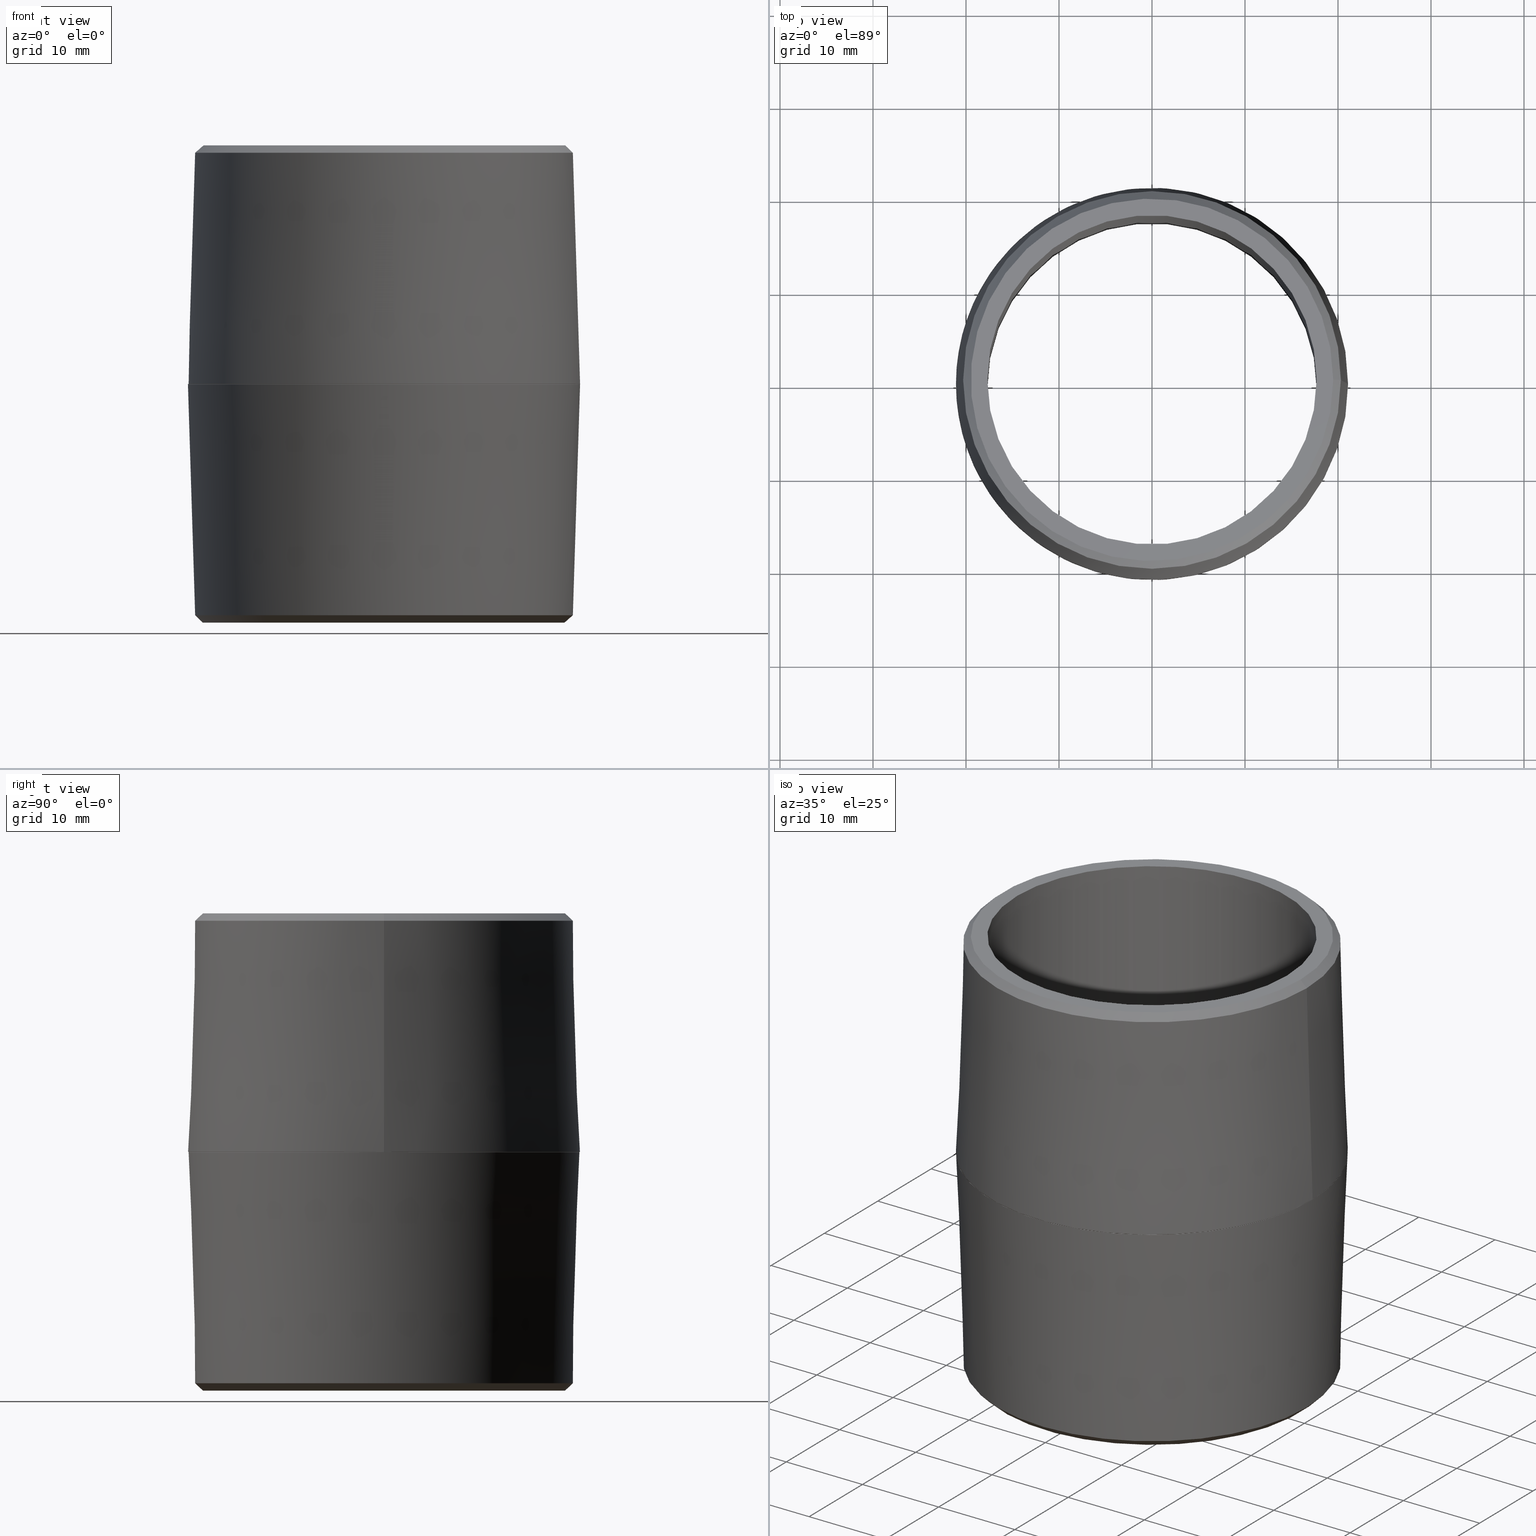
[diagram: canonical four-view strip — front | top / right | iso, engineering-drawing reading convention]
A machine part, canonical four-view strip (front | top / right | iso — engineering-drawing reading convention). The complete STEP part file that produces these views, byte-faithful:
ISO-10303-21;
HEADER;
/* Generated by software containing ST-Developer
 * from STEP Tools, Inc. (www.steptools.com) 
 */

FILE_DESCRIPTION(
/* description */ ('ALUMINUM CLOSE NIPPLE'),
/* implementation_level */ '2;1');

FILE_NAME(
/* name */ 
'D:\\kishore\\killark backup work\\Web drawing\\GE&AN Web drawing\\AN\\
STEP\\KIL_AN-4.stp',
/* time_stamp */ '2021-02-11T16:01:31+06:00',
/* author */ ('kr'),
/* organization */ (''),
/* preprocessor_version */ 'ST-DEVELOPER v18',
/* originating_system */ 'Autodesk Inventor 2020',
/* authorisation */ '');

FILE_SCHEMA (('AUTOMOTIVE_DESIGN { 1 0 10303 214 3 1 1 }'));
ENDSEC;

DATA;
#10=MECHANICAL_DESIGN_GEOMETRIC_PRESENTATION_REPRESENTATION('',(#117,#118,
#119,#120,#121,#122,#123,#124,#125),#249);
#11=SHAPE_REPRESENTATION_RELATIONSHIP('SRR','None',#259,#12);
#12=ADVANCED_BREP_SHAPE_REPRESENTATION('',(#13),#248);
#13=MANIFOLD_SOLID_BREP('Solid1',#134);
#14=FACE_BOUND('',#34,.T.);
#15=FACE_BOUND('',#38,.T.);
#16=PLANE('',#162);
#17=PLANE('',#169);
#18=CONICAL_SURFACE('',#157,0.783314615831517,0.801018860202794);
#19=CONICAL_SURFACE('',#160,0.83,0.0312413936106985);
#20=CONICAL_SURFACE('',#163,0.783314615831517,0.801018860202794);
#21=CONICAL_SURFACE('',#166,0.83,0.0312413936106985);
#22=FACE_OUTER_BOUND('',#30,.T.);
#23=FACE_OUTER_BOUND('',#31,.T.);
#24=FACE_OUTER_BOUND('',#32,.T.);
#25=FACE_OUTER_BOUND('',#33,.T.);
#26=FACE_OUTER_BOUND('',#35,.T.);
#27=FACE_OUTER_BOUND('',#36,.T.);
#28=FACE_OUTER_BOUND('',#37,.T.);
#29=FACE_OUTER_BOUND('',#39,.T.);
#30=EDGE_LOOP('',(#85,#86,#87,#88));
#31=EDGE_LOOP('',(#89,#90,#91,#92));
#32=EDGE_LOOP('',(#93,#94,#95,#96));
#33=EDGE_LOOP('',(#97));
#34=EDGE_LOOP('',(#98));
#35=EDGE_LOOP('',(#99,#100,#101,#102));
#36=EDGE_LOOP('',(#103,#104,#105,#106,#107));
#37=EDGE_LOOP('',(#108));
#38=EDGE_LOOP('',(#109));
#39=EDGE_LOOP('',(#110,#111,#112,#113,#114));
#40=LINE('',#218,#46);
#41=LINE('',#224,#47);
#42=LINE('',#228,#48);
#43=LINE('',#235,#49);
#44=LINE('',#239,#50);
#45=LINE('',#245,#51);
#46=VECTOR('',#177,0.697);
#47=VECTOR('',#184,0.783314615831517);
#48=VECTOR('',#189,0.83);
#49=VECTOR('',#198,0.783314615831517);
#50=VECTOR('',#203,0.83);
#51=VECTOR('',#212,0.83);
#52=CIRCLE('',#155,0.697);
#53=CIRCLE('',#156,0.697);
#54=CIRCLE('',#158,0.799427683203343);
#55=CIRCLE('',#159,0.767201548459691);
#56=CIRCLE('',#161,0.83);
#57=CIRCLE('',#164,0.799427683203343);
#58=CIRCLE('',#165,0.767201548459691);
#59=CIRCLE('',#167,0.83);
#60=CIRCLE('',#168,0.83);
#61=VERTEX_POINT('',#215);
#62=VERTEX_POINT('',#217);
#63=VERTEX_POINT('',#221);
#64=VERTEX_POINT('',#223);
#65=VERTEX_POINT('',#227);
#66=VERTEX_POINT('',#232);
#67=VERTEX_POINT('',#234);
#68=VERTEX_POINT('',#238);
#69=VERTEX_POINT('',#240);
#70=EDGE_CURVE('',#61,#61,#52,.T.);
#71=EDGE_CURVE('',#61,#62,#40,.T.);
#72=EDGE_CURVE('',#62,#62,#53,.T.);
#73=EDGE_CURVE('',#63,#63,#54,.T.);
#74=EDGE_CURVE('',#63,#64,#41,.T.);
#75=EDGE_CURVE('',#64,#64,#55,.T.);
#76=EDGE_CURVE('',#63,#65,#42,.T.);
#77=EDGE_CURVE('',#65,#65,#56,.T.);
#78=EDGE_CURVE('',#66,#66,#57,.T.);
#79=EDGE_CURVE('',#66,#67,#43,.T.);
#80=EDGE_CURVE('',#67,#67,#58,.T.);
#81=EDGE_CURVE('',#66,#68,#44,.T.);
#82=EDGE_CURVE('',#69,#68,#59,.T.);
#83=EDGE_CURVE('',#68,#69,#60,.T.);
#84=EDGE_CURVE('',#65,#69,#45,.T.);
#85=ORIENTED_EDGE('',*,*,#70,.F.);
#86=ORIENTED_EDGE('',*,*,#71,.T.);
#87=ORIENTED_EDGE('',*,*,#72,.F.);
#88=ORIENTED_EDGE('',*,*,#71,.F.);
#89=ORIENTED_EDGE('',*,*,#73,.T.);
#90=ORIENTED_EDGE('',*,*,#74,.T.);
#91=ORIENTED_EDGE('',*,*,#75,.T.);
#92=ORIENTED_EDGE('',*,*,#74,.F.);
#93=ORIENTED_EDGE('',*,*,#73,.F.);
#94=ORIENTED_EDGE('',*,*,#76,.T.);
#95=ORIENTED_EDGE('',*,*,#77,.F.);
#96=ORIENTED_EDGE('',*,*,#76,.F.);
#97=ORIENTED_EDGE('',*,*,#75,.F.);
#98=ORIENTED_EDGE('',*,*,#70,.T.);
#99=ORIENTED_EDGE('',*,*,#78,.T.);
#100=ORIENTED_EDGE('',*,*,#79,.T.);
#101=ORIENTED_EDGE('',*,*,#80,.T.);
#102=ORIENTED_EDGE('',*,*,#79,.F.);
#103=ORIENTED_EDGE('',*,*,#78,.F.);
#104=ORIENTED_EDGE('',*,*,#81,.T.);
#105=ORIENTED_EDGE('',*,*,#82,.F.);
#106=ORIENTED_EDGE('',*,*,#83,.F.);
#107=ORIENTED_EDGE('',*,*,#81,.F.);
#108=ORIENTED_EDGE('',*,*,#80,.F.);
#109=ORIENTED_EDGE('',*,*,#72,.T.);
#110=ORIENTED_EDGE('',*,*,#77,.T.);
#111=ORIENTED_EDGE('',*,*,#84,.T.);
#112=ORIENTED_EDGE('',*,*,#82,.T.);
#113=ORIENTED_EDGE('',*,*,#83,.T.);
#114=ORIENTED_EDGE('',*,*,#84,.F.);
#115=CYLINDRICAL_SURFACE('',#154,0.697);
#116=CYLINDRICAL_SURFACE('',#170,0.83);
#117=STYLED_ITEM('',(#268),#126);
#118=STYLED_ITEM('',(#268),#127);
#119=STYLED_ITEM('',(#268),#128);
#120=STYLED_ITEM('',(#268),#129);
#121=STYLED_ITEM('',(#268),#130);
#122=STYLED_ITEM('',(#268),#131);
#123=STYLED_ITEM('',(#268),#132);
#124=STYLED_ITEM('',(#268),#133);
#125=STYLED_ITEM('',(#268),#13);
#126=ADVANCED_FACE('',(#22),#115,.F.);
#127=ADVANCED_FACE('',(#23),#18,.T.);
#128=ADVANCED_FACE('',(#24),#19,.T.);
#129=ADVANCED_FACE('',(#25,#14),#16,.F.);
#130=ADVANCED_FACE('',(#26),#20,.T.);
#131=ADVANCED_FACE('',(#27),#21,.T.);
#132=ADVANCED_FACE('',(#28,#15),#17,.F.);
#133=ADVANCED_FACE('',(#29),#116,.T.);
#134=CLOSED_SHELL('',(#126,#127,#128,#129,#130,#131,#132,#133));
#135=DERIVED_UNIT_ELEMENT(#137,1.);
#136=DERIVED_UNIT_ELEMENT(#253,3.);
#137=(
MASS_UNIT()
NAMED_UNIT(*)
SI_UNIT($,.GRAM.)
);
#138=DERIVED_UNIT((#135,#136));
#139=MEASURE_REPRESENTATION_ITEM('density measure',
POSITIVE_RATIO_MEASURE(1.),#138);
#140=PROPERTY_DEFINITION_REPRESENTATION(#145,#142);
#141=PROPERTY_DEFINITION_REPRESENTATION(#146,#143);
#142=REPRESENTATION('material name',(#144),#248);
#143=REPRESENTATION('density',(#139),#248);
#144=DESCRIPTIVE_REPRESENTATION_ITEM('Generic','Generic');
#145=PROPERTY_DEFINITION('material property','material name',#261);
#146=PROPERTY_DEFINITION('material property','density of part',#261);
#147=DATE_TIME_ROLE('creation_date');
#148=APPLIED_DATE_AND_TIME_ASSIGNMENT(#149,#147,(#261));
#149=DATE_AND_TIME(#150,#151);
#150=CALENDAR_DATE(2011,22,7);
#151=LOCAL_TIME(13,7,5.,#152);
#152=COORDINATED_UNIVERSAL_TIME_OFFSET(0,0,.BEHIND.);
#153=AXIS2_PLACEMENT_3D('placement',#213,#171,#172);
#154=AXIS2_PLACEMENT_3D('',#214,#173,#174);
#155=AXIS2_PLACEMENT_3D('',#216,#175,#176);
#156=AXIS2_PLACEMENT_3D('',#219,#178,#179);
#157=AXIS2_PLACEMENT_3D('',#220,#180,#181);
#158=AXIS2_PLACEMENT_3D('',#222,#182,#183);
#159=AXIS2_PLACEMENT_3D('',#225,#185,#186);
#160=AXIS2_PLACEMENT_3D('',#226,#187,#188);
#161=AXIS2_PLACEMENT_3D('',#229,#190,#191);
#162=AXIS2_PLACEMENT_3D('',#230,#192,#193);
#163=AXIS2_PLACEMENT_3D('',#231,#194,#195);
#164=AXIS2_PLACEMENT_3D('',#233,#196,#197);
#165=AXIS2_PLACEMENT_3D('',#236,#199,#200);
#166=AXIS2_PLACEMENT_3D('',#237,#201,#202);
#167=AXIS2_PLACEMENT_3D('',#241,#204,#205);
#168=AXIS2_PLACEMENT_3D('',#242,#206,#207);
#169=AXIS2_PLACEMENT_3D('',#243,#208,#209);
#170=AXIS2_PLACEMENT_3D('',#244,#210,#211);
#171=DIRECTION('axis',(0.,0.,1.));
#172=DIRECTION('refdir',(1.,0.,0.));
#173=DIRECTION('center_axis',(0.,0.,-1.));
#174=DIRECTION('ref_axis',(-1.,0.,0.));
#175=DIRECTION('center_axis',(0.,0.,-1.));
#176=DIRECTION('ref_axis',(-1.,0.,0.));
#177=DIRECTION('',(0.,0.,-1.));
#178=DIRECTION('center_axis',(0.,0.,1.));
#179=DIRECTION('ref_axis',(-1.,0.,0.));
#180=DIRECTION('center_axis',(0.,1.56713947363128E-15,-1.));
#181=DIRECTION('ref_axis',(-1.,-3.12449238302891E-17,0.));
#182=DIRECTION('center_axis',(0.,0.,1.));
#183=DIRECTION('ref_axis',(-1.,-6.12303176911189E-17,0.));
#184=DIRECTION('',(-0.718065565180805,-1.02518885391576E-15,0.695975462284103));
#185=DIRECTION('center_axis',(0.,0.,-1.));
#186=DIRECTION('ref_axis',(-1.,0.,0.));
#187=DIRECTION('center_axis',(0.,0.,-1.));
#188=DIRECTION('ref_axis',(-1.,0.,0.));
#189=DIRECTION('',(0.0312363117968641,3.82534492591983E-18,-0.999512027354013));
#190=DIRECTION('center_axis',(0.,0.,-1.));
#191=DIRECTION('ref_axis',(-1.,0.,0.));
#192=DIRECTION('center_axis',(0.,0.,-1.));
#193=DIRECTION('ref_axis',(-1.,0.,0.));
#194=DIRECTION('center_axis',(0.,1.56713947363128E-15,1.));
#195=DIRECTION('ref_axis',(1.,-3.12449238302891E-17,0.));
#196=DIRECTION('center_axis',(0.,0.,-1.));
#197=DIRECTION('ref_axis',(1.,-6.12303176911189E-17,0.));
#198=DIRECTION('',(0.718065565180805,-1.02518885391576E-15,-0.695975462284103));
#199=DIRECTION('center_axis',(0.,0.,1.));
#200=DIRECTION('ref_axis',(1.,0.,0.));
#201=DIRECTION('center_axis',(0.,0.,1.));
#202=DIRECTION('ref_axis',(1.,0.,0.));
#203=DIRECTION('',(-0.0312363117968641,3.82534492591983E-18,0.999512027354013));
#204=DIRECTION('center_axis',(0.,0.,1.));
#205=DIRECTION('ref_axis',(-1.,0.,0.));
#206=DIRECTION('center_axis',(0.,0.,1.));
#207=DIRECTION('ref_axis',(-1.,0.,0.));
#208=DIRECTION('center_axis',(0.,0.,1.));
#209=DIRECTION('ref_axis',(1.,0.,0.));
#210=DIRECTION('center_axis',(0.,0.,1.));
#211=DIRECTION('ref_axis',(-1.,0.,0.));
#212=DIRECTION('',(0.,0.,-1.));
#213=CARTESIAN_POINT('',(0.,0.,0.));
#214=CARTESIAN_POINT('Origin',(0.,0.,1.01));
#215=CARTESIAN_POINT('',(0.697,8.53578819005705E-17,1.01));
#216=CARTESIAN_POINT('Origin',(0.,0.,1.01));
#217=CARTESIAN_POINT('',(0.697,8.53550628614197E-17,-1.01));
#218=CARTESIAN_POINT('',(0.697,-8.53578819005705E-17,1.01));
#219=CARTESIAN_POINT('Origin',(0.,0.,-1.01));
#220=CARTESIAN_POINT('Origin',(0.,2.44746055068079E-17,0.994382624572593));
#221=CARTESIAN_POINT('',(0.799427683203343,1.95796844054463E-16,0.978765249145187));
#222=CARTESIAN_POINT('Origin',(0.,4.89492110136158E-17,0.978765249145187));
#223=CARTESIAN_POINT('',(0.767201548459691,-9.39519890906104E-17,1.01));
#224=CARTESIAN_POINT('',(0.783314615831517,-4.69791626867248E-17,0.994382624572593));
#225=CARTESIAN_POINT('Origin',(0.,0.,1.01));
#226=CARTESIAN_POINT('Origin',(0.,0.,0.0005));
#227=CARTESIAN_POINT('',(0.83,1.0164568432923E-16,0.0005));
#228=CARTESIAN_POINT('',(0.83,1.0164568432923E-16,0.0005));
#229=CARTESIAN_POINT('Origin',(0.,0.,0.0005));
#230=CARTESIAN_POINT('Origin',(0.,0.,1.01));
#231=CARTESIAN_POINT('Origin',(0.,2.44746055068079E-17,-0.994382624572593));
#232=CARTESIAN_POINT('',(-0.799427683203343,1.95796844054463E-16,-0.978765249145187));
#233=CARTESIAN_POINT('Origin',(0.,4.89492110136158E-17,-0.978765249145187));
#234=CARTESIAN_POINT('',(-0.767201548459691,-9.39519890906104E-17,-1.01));
#235=CARTESIAN_POINT('',(-0.783314615831517,-4.69791626867248E-17,-0.994382624572593));
#236=CARTESIAN_POINT('Origin',(0.,0.,-1.01));
#237=CARTESIAN_POINT('Origin',(0.,0.,-0.0005));
#238=CARTESIAN_POINT('',(-0.83,1.0164568432923E-16,-0.000499999999999997));
#239=CARTESIAN_POINT('',(-0.83,1.0164568432923E-16,-0.0005));
#240=CARTESIAN_POINT('',(0.83,1.0164568432923E-16,-0.0005));
#241=CARTESIAN_POINT('Origin',(0.,0.,-0.0005));
#242=CARTESIAN_POINT('Origin',(0.,0.,-0.0005));
#243=CARTESIAN_POINT('Origin',(0.,0.,-1.01));
#244=CARTESIAN_POINT('Origin',(0.,0.,0.));
#245=CARTESIAN_POINT('',(0.83,1.0164568432923E-16,0.));
#246=UNCERTAINTY_MEASURE_WITH_UNIT(LENGTH_MEASURE(0.000393700787401575),
#251,'DISTANCE_ACCURACY_VALUE',
'Maximum model space distance between geometric entities at asserted c
onnectivities');
#247=UNCERTAINTY_MEASURE_WITH_UNIT(LENGTH_MEASURE(0.000393700787401575),
#251,'DISTANCE_ACCURACY_VALUE',
'Maximum model space distance between geometric entities at asserted c
onnectivities');
#248=(
GEOMETRIC_REPRESENTATION_CONTEXT(3)
GLOBAL_UNCERTAINTY_ASSIGNED_CONTEXT((#246))
GLOBAL_UNIT_ASSIGNED_CONTEXT((#251,#255,#256))
REPRESENTATION_CONTEXT('','3D')
);
#249=(
GEOMETRIC_REPRESENTATION_CONTEXT(3)
GLOBAL_UNCERTAINTY_ASSIGNED_CONTEXT((#247))
GLOBAL_UNIT_ASSIGNED_CONTEXT((#251,#255,#256))
REPRESENTATION_CONTEXT('','3D')
);
#250=DIMENSIONAL_EXPONENTS(1.,0.,0.,0.,0.,0.,0.);
#251=(
CONVERSION_BASED_UNIT('inch',#254)
LENGTH_UNIT()
NAMED_UNIT(#250)
);
#252=(
LENGTH_UNIT()
NAMED_UNIT(*)
SI_UNIT(.MILLI.,.METRE.)
);
#253=(
LENGTH_UNIT()
NAMED_UNIT(*)
SI_UNIT(.CENTI.,.METRE.)
);
#254=LENGTH_MEASURE_WITH_UNIT(LENGTH_MEASURE(25.4),#252);
#255=(
NAMED_UNIT(*)
PLANE_ANGLE_UNIT()
SI_UNIT($,.RADIAN.)
);
#256=(
NAMED_UNIT(*)
SI_UNIT($,.STERADIAN.)
SOLID_ANGLE_UNIT()
);
#257=SHAPE_DEFINITION_REPRESENTATION(#258,#259);
#258=PRODUCT_DEFINITION_SHAPE('',$,#261);
#259=SHAPE_REPRESENTATION('',(#153),#248);
#260=PRODUCT_DEFINITION_CONTEXT('part definition',#265,'design');
#261=PRODUCT_DEFINITION('14077','14077-4',#262,#260);
#262=PRODUCT_DEFINITION_FORMATION('H',$,#267);
#263=PRODUCT_RELATED_PRODUCT_CATEGORY('14077-4','14077-4',(#267));
#264=APPLICATION_PROTOCOL_DEFINITION('international standard',
'automotive_design',2009,#265);
#265=APPLICATION_CONTEXT(
'Core Data for Automotive Mechanical Design Process');
#266=PRODUCT_CONTEXT('part definition',#265,'mechanical');
#267=PRODUCT('14077','14077-4','ALUMINUM CLOSE NIPPLE',(#266));
#268=PRESENTATION_STYLE_ASSIGNMENT((#269));
#269=SURFACE_STYLE_USAGE(.BOTH.,#272);
#270=SURFACE_STYLE_RENDERING_WITH_PROPERTIES($,#276,(#271));
#271=SURFACE_STYLE_TRANSPARENT(0.);
#272=SURFACE_SIDE_STYLE('',(#273,#270));
#273=SURFACE_STYLE_FILL_AREA(#274);
#274=FILL_AREA_STYLE('',(#275));
#275=FILL_AREA_STYLE_COLOUR('',#276);
#276=COLOUR_RGB('',0.611764705882353,0.725490196078431,0.745098039215686);
ENDSEC;
END-ISO-10303-21;
